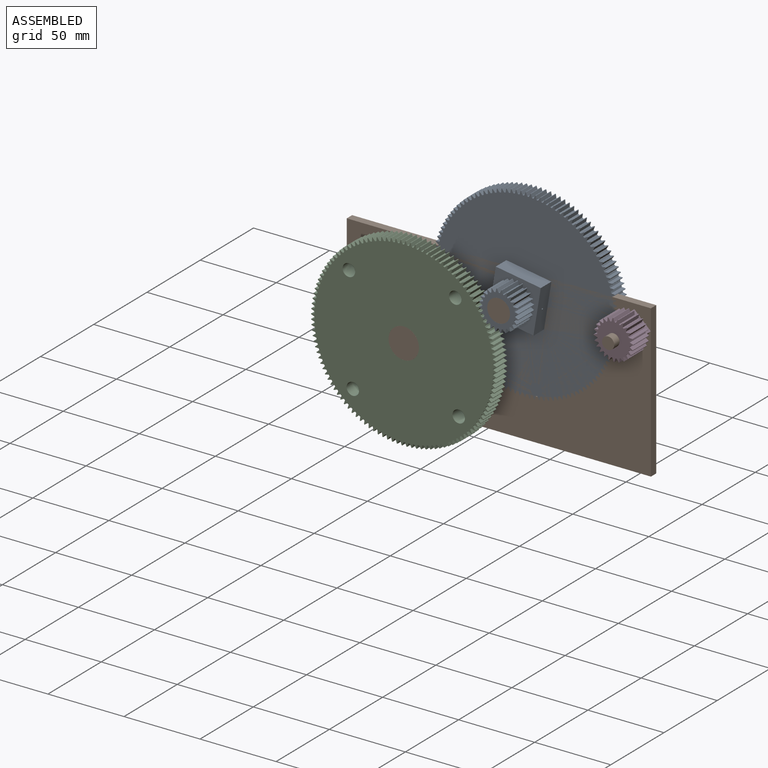
[diagram: assembled view]
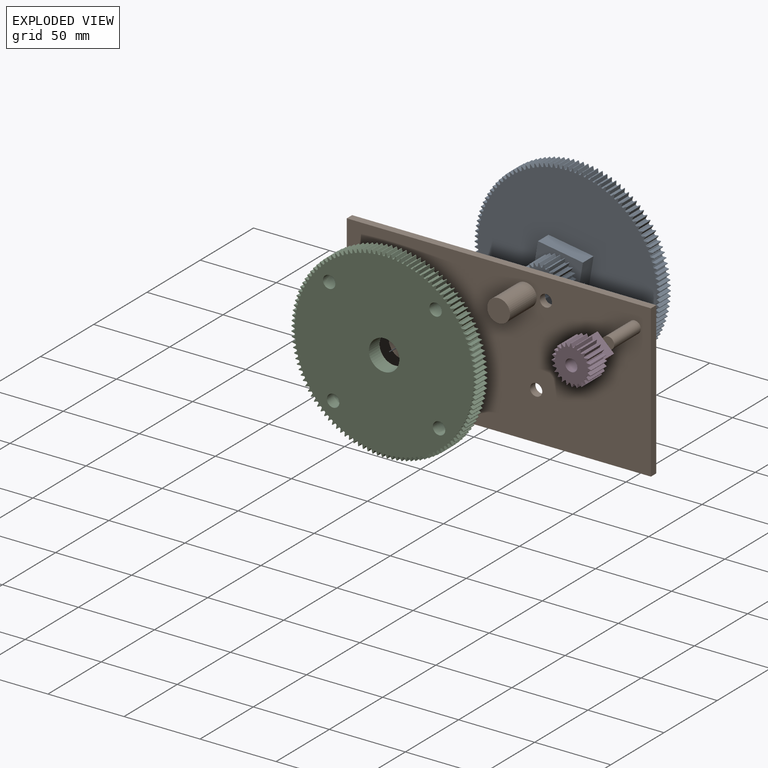
[diagram: exploded view]
GUIDED TOUR — MATED ASSEMBLY (Onshape document 46f5df53741bc79f24e5e52b, AutoMate assembly 46f5df53741bc79f24e5e52b_6ad09a4ab3057890df0f131d_3e118a92281bbf4fea981c0b_default)

This assembly has 4 components, labeled P0..P3 below (a component is one placed occurrence of a part; the same part can appear more than once), held together by 3 mates. A mate is a constraint between two components; its type names the relative motion it leaves free:
  REVOLUTE — leaves rotation about the listed axis free (a hinge).
Axis/direction vectors are unit vectors and 'through' points are millimeter coordinates, both in the assembly's world frame.

MATES
  1. REVOLUTE "Revolute 3": P1 <-> P3, axis (0.000, -1.000, 0.000) through (264.86, -38.01, 86.17) mm
  2. REVOLUTE "Revolute 1": P1 <-> P2, axis (0.000, -1.000, 0.000) through (130.51, -38.01, 50.17) mm
  3. REVOLUTE "Revolute 2": P1 <-> P0, axis (0.000, -1.000, 0.000) through (192.86, -38.01, 86.17) mm

ASSEMBLY ORDER
  1. P1 — the base component [order heuristic]
  2. P0 [order heuristic]
  3. P2 [order heuristic]
  4. P3 [order heuristic]
Order-tag legend:
  [order heuristic] — this assembly is geometrically interlocked (no collision-free removal order exists), so components are listed in mate-graph order; insertion feasibility is not verified.

Of the 4 components, 3 carry the full construction recipe — the FeatureScript program that regenerates the part's solid from scratch; the rest are supplied as boundary geometry only.
Each toured component is shown spotlighted twice — in the assembled view, then in the exploded view, where a leader line traces a displaced component back to its assembled socket (saturated green if recipe-attached, orange if geometry-only; every other component desaturated gray) — followed by its recipe or geometry summary and the mates that hold it.
NOTE — document 2 of 2 of this assembly tour. The two overview renders and the header above are repeated from document 1; the component sections below continue where the previous document stopped.
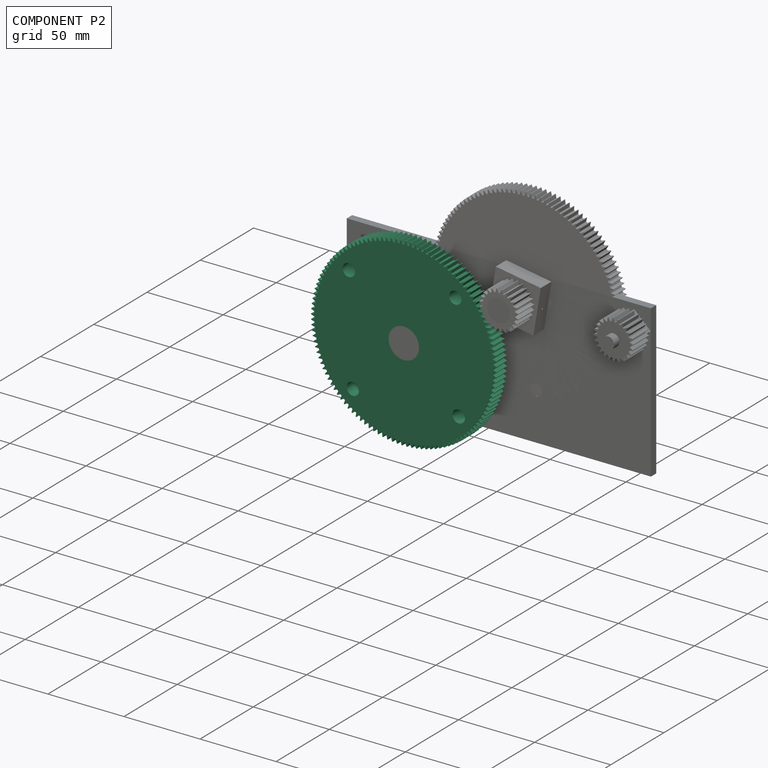
[diagram: component P2 — assembled]
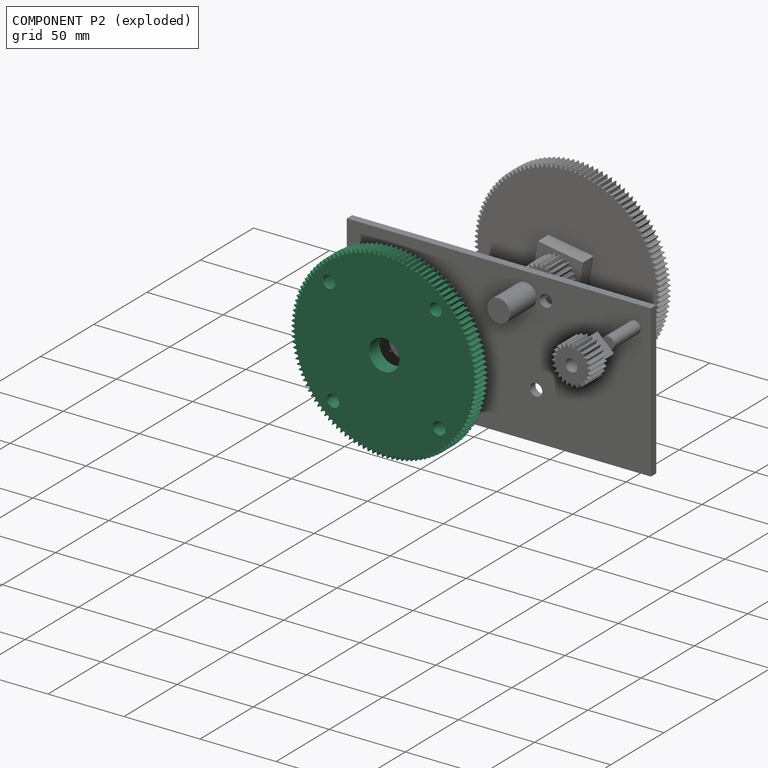
[diagram: component P2 — exploded]
COMPONENT P2 — recipe-attached (CADFS 00383873, mesh-verified: the recipe's output STEP matches this component's geometry to below the mesh-comparison resolution (tessellation chordal tolerance ~0.259 mm)).
Held by: REVOLUTE mate "Revolute 1" to P1.
Construction recipe (FeatureScript — the CAD program that rebuilds this solid; sketch coordinates are in the units given by the * unit suffixes, e.g. mm):

FeatureScript 1511;
import(path : "onshape/std/geometry.fs", version : "1511.0");
import(path : "onshape/std/common.fs", version : "1511.0");
const mm = millimeter;
const VERTEX = EntityType.VERTEX;
const EDGE = EntityType.EDGE;
const FACE = EntityType.FACE;
const BODY = EntityType.BODY;
function v(x, y){return vector(x, y);}
function OD(order){return orderDisambiguation(order);}
function OSD(set){return originalSetDisambiguation(set);}
function TD(topology){return topologyDisambiguation(topology);}
function TDD(query){return trueDependencyDisambiguation(query);}
function sQuery(a, b, c) {return sketchEntityQuery(a, b, c);}

annotation { "Feature Type Name" : "Feature", "Feature Type Description" : "" }
export const myFeature = defineFeature(function(context is Context, id is Id, definition is map)
    precondition{}
    {
        {
            var Q0;
            Q0=qCreatedBy(makeId("Front.planeOp"),FACE);
            var sketch = newSketch(context, id + "F0", { "sketchPlane" : qUnion([Q0])});
            skCircle(sketch, "E0", {"center": v(0, 0) * mm, "radius": 58.75 * mm});
            skCircle(sketch, "E1", {"center": v(0, 0) * mm, "radius": 61 * mm, "construction": true});
            skLineSegment(sketch, "E2", {"start": v(-1, 58.74) * mm, "end": v(-0.19, 61) * mm});
            skLineSegment(sketch, "E3", {"start": v(-0.19, 61) * mm, "end": v(0, 61) * mm});
            skLineSegment(sketch, "E4", {"start": v(-1, 58.74) * mm, "end": v(-1, 61.95) * mm, "construction": true});
            skLineSegment(sketch, "E5.MirrorCS", {"start": v(0.19, 61) * mm, "end": v(0, 61) * mm});
            skLineSegment(sketch, "E6.MirrorCS", {"start": v(1, 58.74) * mm, "end": v(0.19, 61) * mm});
            skLineSegment(sketch, "E7.1.0", {"start": v(-4.08, 58.6) * mm, "end": v(-3.38, 60.9) * mm});
            skLineSegment(sketch, "E7.1.1", {"start": v(-3.38, 60.9) * mm, "end": v(-3.2, 60.92) * mm});
            skLineSegment(sketch, "E7.1.2", {"start": v(-3, 60.93) * mm, "end": v(-3.2, 60.92) * mm});
            skLineSegment(sketch, "E7.1.3", {"start": v(-2.07, 58.71) * mm, "end": v(-3, 60.93) * mm});
            skLineSegment(sketch, "E7.2.0", {"start": v(-7.14, 58.31) * mm, "end": v(-6.56, 60.65) * mm});
            skLineSegment(sketch, "E7.2.1", {"start": v(-6.56, 60.65) * mm, "end": v(-6.38, 60.67) * mm});
            skLineSegment(sketch, "E7.2.2", {"start": v(-6.19, 60.69) * mm, "end": v(-6.38, 60.67) * mm});
            skLineSegment(sketch, "E7.2.3", {"start": v(-5.14, 58.53) * mm, "end": v(-6.19, 60.69) * mm});
            skLineSegment(sketch, "E7.3.0", {"start": v(-10.19, 57.86) * mm, "end": v(-9.73, 60.22) * mm});
            skLineSegment(sketch, "E7.3.1", {"start": v(-9.73, 60.22) * mm, "end": v(-9.54, 60.25) * mm});
            skLineSegment(sketch, "E7.3.2", {"start": v(-9.36, 60.28) * mm, "end": v(-9.54, 60.25) * mm});
            skLineSegment(sketch, "E7.3.3", {"start": v(-8.2, 58.18) * mm, "end": v(-9.36, 60.28) * mm});
            skLineSegment(sketch, "E7.4.0", {"start": v(-13.2, 57.25) * mm, "end": v(-12.87, 59.63) * mm});
            skLineSegment(sketch, "E7.4.1", {"start": v(-12.87, 59.63) * mm, "end": v(-12.68, 59.67) * mm});
            skLineSegment(sketch, "E7.4.2", {"start": v(-12.5, 59.7) * mm, "end": v(-12.68, 59.67) * mm});
            skLineSegment(sketch, "E7.4.3", {"start": v(-11.23, 57.67) * mm, "end": v(-12.5, 59.7) * mm});
            skLineSegment(sketch, "E7.5.0", {"start": v(-16.18, 56.48) * mm, "end": v(-15.97, 58.87) * mm});
            skLineSegment(sketch, "E7.5.1", {"start": v(-15.97, 58.87) * mm, "end": v(-15.79, 58.92) * mm});
            skLineSegment(sketch, "E7.5.2", {"start": v(-15.6, 58.97) * mm, "end": v(-15.79, 58.92) * mm});
            skLineSegment(sketch, "E7.5.3", {"start": v(-14.23, 57) * mm, "end": v(-15.6, 58.97) * mm});
            skLineSegment(sketch, "E7.6.0", {"start": v(-19.11, 55.55) * mm, "end": v(-19.03, 57.96) * mm});
            skLineSegment(sketch, "E7.6.1", {"start": v(-19.03, 57.96) * mm, "end": v(-18.85, 58.01) * mm});
            skLineSegment(sketch, "E7.6.2", {"start": v(-18.67, 58.07) * mm, "end": v(-18.85, 58.01) * mm});
            skLineSegment(sketch, "E7.6.3", {"start": v(-17.2, 56.18) * mm, "end": v(-18.67, 58.07) * mm});
            skLineSegment(sketch, "E7.7.0", {"start": v(-22, 54.48) * mm, "end": v(-22.04, 56.88) * mm});
            skLineSegment(sketch, "E7.7.1", {"start": v(-22.04, 56.88) * mm, "end": v(-21.86, 56.95) * mm});
            skLineSegment(sketch, "E7.7.2", {"start": v(-21.69, 57.02) * mm, "end": v(-21.86, 56.95) * mm});
            skLineSegment(sketch, "E7.7.3", {"start": v(-20.1, 55.2) * mm, "end": v(-21.69, 57.02) * mm});
            skLineSegment(sketch, "E7.8.0", {"start": v(-24.81, 53.25) * mm, "end": v(-24.98, 55.65) * mm});
            skLineSegment(sketch, "E7.8.1", {"start": v(-24.98, 55.65) * mm, "end": v(-24.81, 55.73) * mm});
            skLineSegment(sketch, "E7.8.2", {"start": v(-24.64, 55.8) * mm, "end": v(-24.81, 55.73) * mm});
            skLineSegment(sketch, "E7.8.3", {"start": v(-22.97, 54.07) * mm, "end": v(-24.64, 55.8) * mm});
            skLineSegment(sketch, "E7.9.0", {"start": v(-27.57, 51.88) * mm, "end": v(-27.86, 54.27) * mm});
            skLineSegment(sketch, "E7.9.1", {"start": v(-27.86, 54.27) * mm, "end": v(-27.7, 54.35) * mm});
            skLineSegment(sketch, "E7.9.2", {"start": v(-27.53, 54.44) * mm, "end": v(-27.7, 54.35) * mm});
            skLineSegment(sketch, "E7.9.3", {"start": v(-25.77, 52.8) * mm, "end": v(-27.53, 54.44) * mm});
            skLineSegment(sketch, "E7.10.0", {"start": v(-30.24, 50.37) * mm, "end": v(-30.66, 52.73) * mm});
            skLineSegment(sketch, "E7.10.1", {"start": v(-30.66, 52.73) * mm, "end": v(-30.5, 52.83) * mm});
            skLineSegment(sketch, "E7.10.2", {"start": v(-30.34, 52.92) * mm, "end": v(-30.5, 52.83) * mm});
            skLineSegment(sketch, "E7.10.3", {"start": v(-28.5, 51.38) * mm, "end": v(-30.34, 52.92) * mm});
            skLineSegment(sketch, "E7.11.0", {"start": v(-32.84, 48.71) * mm, "end": v(-33.38, 51.06) * mm});
            skLineSegment(sketch, "E7.11.1", {"start": v(-33.38, 51.06) * mm, "end": v(-33.22, 51.16) * mm});
            skLineSegment(sketch, "E7.11.2", {"start": v(-33.07, 51.26) * mm, "end": v(-33.22, 51.16) * mm});
            skLineSegment(sketch, "E7.11.3", {"start": v(-31.15, 49.81) * mm, "end": v(-33.07, 51.26) * mm});
            skLineSegment(sketch, "E8.1.12.0", {"start": v(-35.34, 46.93) * mm, "end": v(-36, 49.24) * mm});
            skLineSegment(sketch, "E8.3.12.0", {"start": v(-36, 49.24) * mm, "end": v(-35.85, 49.35) * mm});
            skLineSegment(sketch, "E8.6.12.0", {"start": v(-35.7, 49.46) * mm, "end": v(-35.85, 49.35) * mm});
            skLineSegment(sketch, "E8.9.12.0", {"start": v(-33.71, 48.12) * mm, "end": v(-35.7, 49.46) * mm});
            skLineSegment(sketch, "E8.1.13.0", {"start": v(-37.75, 45.02) * mm, "end": v(-38.53, 47.29) * mm});
            skLineSegment(sketch, "E8.3.13.0", {"start": v(-38.53, 47.29) * mm, "end": v(-38.39, 47.4) * mm});
            skLineSegment(sketch, "E8.6.13.0", {"start": v(-38.24, 47.52) * mm, "end": v(-38.39, 47.4) * mm});
            skLineSegment(sketch, "E8.9.13.0", {"start": v(-36.18, 46.29) * mm, "end": v(-38.24, 47.52) * mm});
            skLineSegment(sketch, "E8.1.14.0", {"start": v(-40.06, 42.98) * mm, "end": v(-40.96, 45.2) * mm});
            skLineSegment(sketch, "E8.3.14.0", {"start": v(-40.96, 45.2) * mm, "end": v(-40.82, 45.33) * mm});
            skLineSegment(sketch, "E8.6.14.0", {"start": v(-40.68, 45.46) * mm, "end": v(-40.82, 45.33) * mm});
            skLineSegment(sketch, "E8.9.14.0", {"start": v(-38.56, 44.33) * mm, "end": v(-40.68, 45.46) * mm});
            skLineSegment(sketch, "E8.1.15.0", {"start": v(-42.25, 40.82) * mm, "end": v(-43.27, 43) * mm});
            skLineSegment(sketch, "E8.3.15.0", {"start": v(-43.27, 43) * mm, "end": v(-43.13, 43.13) * mm});
            skLineSegment(sketch, "E8.6.15.0", {"start": v(-43, 43.27) * mm, "end": v(-43.13, 43.13) * mm});
            skLineSegment(sketch, "E8.9.15.0", {"start": v(-40.82, 42.25) * mm, "end": v(-43, 43.27) * mm});
            skLineSegment(sketch, "E8.1.16.0", {"start": v(-44.33, 38.56) * mm, "end": v(-45.46, 40.68) * mm});
            skLineSegment(sketch, "E8.3.16.0", {"start": v(-45.46, 40.68) * mm, "end": v(-45.33, 40.82) * mm});
            skLineSegment(sketch, "E8.6.16.0", {"start": v(-45.2, 40.96) * mm, "end": v(-45.33, 40.82) * mm});
            skLineSegment(sketch, "E8.9.16.0", {"start": v(-42.98, 40.06) * mm, "end": v(-45.2, 40.96) * mm});
            skLineSegment(sketch, "E8.1.17.0", {"start": v(-46.29, 36.18) * mm, "end": v(-47.52, 38.24) * mm});
            skLineSegment(sketch, "E8.3.17.0", {"start": v(-47.52, 38.24) * mm, "end": v(-47.4, 38.39) * mm});
            skLineSegment(sketch, "E8.6.17.0", {"start": v(-47.29, 38.53) * mm, "end": v(-47.4, 38.39) * mm});
            skLineSegment(sketch, "E8.9.17.0", {"start": v(-45.02, 37.75) * mm, "end": v(-47.29, 38.53) * mm});
            skLineSegment(sketch, "E8.1.18.0", {"start": v(-48.12, 33.71) * mm, "end": v(-49.46, 35.7) * mm});
            skLineSegment(sketch, "E8.3.18.0", {"start": v(-49.46, 35.7) * mm, "end": v(-49.35, 35.85) * mm});
            skLineSegment(sketch, "E8.6.18.0", {"start": v(-49.24, 36) * mm, "end": v(-49.35, 35.85) * mm});
            skLineSegment(sketch, "E8.9.18.0", {"start": v(-46.93, 35.34) * mm, "end": v(-49.24, 36) * mm});
            skLineSegment(sketch, "E8.1.19.0", {"start": v(-49.81, 31.15) * mm, "end": v(-51.26, 33.07) * mm});
            skLineSegment(sketch, "E8.3.19.0", {"start": v(-51.26, 33.07) * mm, "end": v(-51.16, 33.22) * mm});
            skLineSegment(sketch, "E8.6.19.0", {"start": v(-51.06, 33.38) * mm, "end": v(-51.16, 33.22) * mm});
            skLineSegment(sketch, "E8.9.19.0", {"start": v(-48.71, 32.84) * mm, "end": v(-51.06, 33.38) * mm});
            skLineSegment(sketch, "E8.1.20.0", {"start": v(-51.38, 28.5) * mm, "end": v(-52.92, 30.34) * mm});
            skLineSegment(sketch, "E8.3.20.0", {"start": v(-52.92, 30.34) * mm, "end": v(-52.83, 30.5) * mm});
            skLineSegment(sketch, "E8.6.20.0", {"start": v(-52.73, 30.66) * mm, "end": v(-52.83, 30.5) * mm});
            skLineSegment(sketch, "E8.9.20.0", {"start": v(-50.37, 30.24) * mm, "end": v(-52.73, 30.66) * mm});
            skLineSegment(sketch, "E8.1.21.0", {"start": v(-52.8, 25.77) * mm, "end": v(-54.44, 27.53) * mm});
            skLineSegment(sketch, "E8.3.21.0", {"start": v(-54.44, 27.53) * mm, "end": v(-54.35, 27.7) * mm});
            skLineSegment(sketch, "E8.6.21.0", {"start": v(-54.27, 27.86) * mm, "end": v(-54.35, 27.7) * mm});
            skLineSegment(sketch, "E8.9.21.0", {"start": v(-51.88, 27.57) * mm, "end": v(-54.27, 27.86) * mm});
            skLineSegment(sketch, "E8.1.22.0", {"start": v(-54.07, 22.97) * mm, "end": v(-55.8, 24.64) * mm});
            skLineSegment(sketch, "E8.3.22.0", {"start": v(-55.8, 24.64) * mm, "end": v(-55.73, 24.81) * mm});
            skLineSegment(sketch, "E8.6.22.0", {"start": v(-55.65, 24.98) * mm, "end": v(-55.73, 24.81) * mm});
            skLineSegment(sketch, "E8.9.22.0", {"start": v(-53.25, 24.81) * mm, "end": v(-55.65, 24.98) * mm});
            skLineSegment(sketch, "E8.1.23.0", {"start": v(-55.2, 20.1) * mm, "end": v(-57.02, 21.69) * mm});
            skLineSegment(sketch, "E8.3.23.0", {"start": v(-57.02, 21.69) * mm, "end": v(-56.95, 21.86) * mm});
            skLineSegment(sketch, "E8.6.23.0", {"start": v(-56.88, 22.04) * mm, "end": v(-56.95, 21.86) * mm});
            skLineSegment(sketch, "E8.9.23.0", {"start": v(-54.48, 22) * mm, "end": v(-56.88, 22.04) * mm});
            skLineSegment(sketch, "E8.1.24.0", {"start": v(-56.18, 17.2) * mm, "end": v(-58.07, 18.67) * mm});
            skLineSegment(sketch, "E8.3.24.0", {"start": v(-58.07, 18.67) * mm, "end": v(-58.01, 18.85) * mm});
            skLineSegment(sketch, "E8.6.24.0", {"start": v(-57.96, 19.03) * mm, "end": v(-58.01, 18.85) * mm});
            skLineSegment(sketch, "E8.9.24.0", {"start": v(-55.55, 19.11) * mm, "end": v(-57.96, 19.03) * mm});
            skLineSegment(sketch, "E8.1.25.0", {"start": v(-57, 14.23) * mm, "end": v(-58.97, 15.6) * mm});
            skLineSegment(sketch, "E8.3.25.0", {"start": v(-58.97, 15.6) * mm, "end": v(-58.92, 15.79) * mm});
            skLineSegment(sketch, "E8.6.25.0", {"start": v(-58.87, 15.97) * mm, "end": v(-58.92, 15.79) * mm});
            skLineSegment(sketch, "E8.9.25.0", {"start": v(-56.48, 16.18) * mm, "end": v(-58.87, 15.97) * mm});
            skLineSegment(sketch, "E8.1.26.0", {"start": v(-57.67, 11.23) * mm, "end": v(-59.7, 12.5) * mm});
            skLineSegment(sketch, "E8.3.26.0", {"start": v(-59.7, 12.5) * mm, "end": v(-59.67, 12.68) * mm});
            skLineSegment(sketch, "E8.6.26.0", {"start": v(-59.63, 12.87) * mm, "end": v(-59.67, 12.68) * mm});
            skLineSegment(sketch, "E8.9.26.0", {"start": v(-57.25, 13.2) * mm, "end": v(-59.63, 12.87) * mm});
            skLineSegment(sketch, "E8.1.27.0", {"start": v(-58.18, 8.2) * mm, "end": v(-60.28, 9.36) * mm});
            skLineSegment(sketch, "E8.3.27.0", {"start": v(-60.28, 9.36) * mm, "end": v(-60.25, 9.54) * mm});
            skLineSegment(sketch, "E8.6.27.0", {"start": v(-60.22, 9.73) * mm, "end": v(-60.25, 9.54) * mm});
            skLineSegment(sketch, "E8.9.27.0", {"start": v(-57.86, 10.19) * mm, "end": v(-60.22, 9.73) * mm});
            skLineSegment(sketch, "E8.1.28.0", {"start": v(-58.53, 5.14) * mm, "end": v(-60.69, 6.19) * mm});
            skLineSegment(sketch, "E8.3.28.0", {"start": v(-60.69, 6.19) * mm, "end": v(-60.67, 6.38) * mm});
            skLineSegment(sketch, "E8.6.28.0", {"start": v(-60.65, 6.56) * mm, "end": v(-60.67, 6.38) * mm});
            skLineSegment(sketch, "E8.9.28.0", {"start": v(-58.31, 7.14) * mm, "end": v(-60.65, 6.56) * mm});
            skLineSegment(sketch, "E8.1.29.0", {"start": v(-58.71, 2.07) * mm, "end": v(-60.93, 3) * mm});
            skLineSegment(sketch, "E8.3.29.0", {"start": v(-60.93, 3) * mm, "end": v(-60.92, 3.2) * mm});
            skLineSegment(sketch, "E8.6.29.0", {"start": v(-60.9, 3.38) * mm, "end": v(-60.92, 3.2) * mm});
            skLineSegment(sketch, "E8.9.29.0", {"start": v(-58.6, 4.08) * mm, "end": v(-60.9, 3.38) * mm});
            skLineSegment(sketch, "E8.1.30.0", {"start": v(-58.74, -1) * mm, "end": v(-61, -0.19) * mm});
            skLineSegment(sketch, "E8.3.30.0", {"start": v(-61, -0.19) * mm, "end": v(-61, 0) * mm});
            skLineSegment(sketch, "E8.6.30.0", {"start": v(-61, 0.19) * mm, "end": v(-61, 0) * mm});
            skLineSegment(sketch, "E8.9.30.0", {"start": v(-58.74, 1) * mm, "end": v(-61, 0.19) * mm});
            skLineSegment(sketch, "E8.1.31.0", {"start": v(-58.6, -4.08) * mm, "end": v(-60.9, -3.38) * mm});
            skLineSegment(sketch, "E8.3.31.0", {"start": v(-60.9, -3.38) * mm, "end": v(-60.92, -3.2) * mm});
            skLineSegment(sketch, "E8.6.31.0", {"start": v(-60.93, -3) * mm, "end": v(-60.92, -3.2) * mm});
            skLineSegment(sketch, "E8.9.31.0", {"start": v(-58.71, -2.07) * mm, "end": v(-60.93, -3) * mm});
            skLineSegment(sketch, "E8.1.32.0", {"start": v(-58.31, -7.14) * mm, "end": v(-60.65, -6.56) * mm});
            skLineSegment(sketch, "E8.3.32.0", {"start": v(-60.65, -6.56) * mm, "end": v(-60.67, -6.38) * mm});
            skLineSegment(sketch, "E8.6.32.0", {"start": v(-60.69, -6.19) * mm, "end": v(-60.67, -6.38) * mm});
            skLineSegment(sketch, "E8.9.32.0", {"start": v(-58.53, -5.14) * mm, "end": v(-60.69, -6.19) * mm});
            skLineSegment(sketch, "E8.1.33.0", {"start": v(-57.86, -10.19) * mm, "end": v(-60.22, -9.73) * mm});
            skLineSegment(sketch, "E8.3.33.0", {"start": v(-60.22, -9.73) * mm, "end": v(-60.25, -9.54) * mm});
            skLineSegment(sketch, "E8.6.33.0", {"start": v(-60.28, -9.36) * mm, "end": v(-60.25, -9.54) * mm});
            skLineSegment(sketch, "E8.9.33.0", {"start": v(-58.18, -8.2) * mm, "end": v(-60.28, -9.36) * mm});
            skLineSegment(sketch, "E8.1.34.0", {"start": v(-57.25, -13.2) * mm, "end": v(-59.63, -12.87) * mm});
            skLineSegment(sketch, "E8.3.34.0", {"start": v(-59.63, -12.87) * mm, "end": v(-59.67, -12.68) * mm});
            skLineSegment(sketch, "E8.6.34.0", {"start": v(-59.7, -12.5) * mm, "end": v(-59.67, -12.68) * mm});
            skLineSegment(sketch, "E8.9.34.0", {"start": v(-57.67, -11.23) * mm, "end": v(-59.7, -12.5) * mm});
            skLineSegment(sketch, "E8.1.35.0", {"start": v(-56.48, -16.18) * mm, "end": v(-58.87, -15.97) * mm});
            skLineSegment(sketch, "E8.3.35.0", {"start": v(-58.87, -15.97) * mm, "end": v(-58.92, -15.79) * mm});
            skLineSegment(sketch, "E8.6.35.0", {"start": v(-58.97, -15.6) * mm, "end": v(-58.92, -15.79) * mm});
            skLineSegment(sketch, "E8.9.35.0", {"start": v(-57, -14.23) * mm, "end": v(-58.97, -15.6) * mm});
            skLineSegment(sketch, "E8.1.36.0", {"start": v(-55.55, -19.11) * mm, "end": v(-57.96, -19.03) * mm});
            skLineSegment(sketch, "E8.3.36.0", {"start": v(-57.96, -19.03) * mm, "end": v(-58.01, -18.85) * mm});
            skLineSegment(sketch, "E8.6.36.0", {"start": v(-58.07, -18.67) * mm, "end": v(-58.01, -18.85) * mm});
            skLineSegment(sketch, "E8.9.36.0", {"start": v(-56.18, -17.2) * mm, "end": v(-58.07, -18.67) * mm});
            skLineSegment(sketch, "E8.1.37.0", {"start": v(-54.48, -22) * mm, "end": v(-56.88, -22.04) * mm});
            skLineSegment(sketch, "E8.3.37.0", {"start": v(-56.88, -22.04) * mm, "end": v(-56.95, -21.86) * mm});
            skLineSegment(sketch, "E8.6.37.0", {"start": v(-57.02, -21.69) * mm, "end": v(-56.95, -21.86) * mm});
            skLineSegment(sketch, "E8.9.37.0", {"start": v(-55.2, -20.1) * mm, "end": v(-57.02, -21.69) * mm});
            skLineSegment(sketch, "E8.1.38.0", {"start": v(-53.25, -24.81) * mm, "end": v(-55.65, -24.98) * mm});
            skLineSegment(sketch, "E8.3.38.0", {"start": v(-55.65, -24.98) * mm, "end": v(-55.73, -24.81) * mm});
            skLineSegment(sketch, "E8.6.38.0", {"start": v(-55.8, -24.64) * mm, "end": v(-55.73, -24.81) * mm});
            skLineSegment(sketch, "E8.9.38.0", {"start": v(-54.07, -22.97) * mm, "end": v(-55.8, -24.64) * mm});
            skLineSegment(sketch, "E8.1.39.0", {"start": v(-51.88, -27.57) * mm, "end": v(-54.27, -27.86) * mm});
            skLineSegment(sketch, "E8.3.39.0", {"start": v(-54.27, -27.86) * mm, "end": v(-54.35, -27.7) * mm});
            skLineSegment(sketch, "E8.6.39.0", {"start": v(-54.44, -27.53) * mm, "end": v(-54.35, -27.7) * mm});
            skLineSegment(sketch, "E8.9.39.0", {"start": v(-52.8, -25.77) * mm, "end": v(-54.44, -27.53) * mm});
            skLineSegment(sketch, "E8.1.40.0", {"start": v(-50.37, -30.24) * mm, "end": v(-52.73, -30.66) * mm});
            skLineSegment(sketch, "E8.3.40.0", {"start": v(-52.73, -30.66) * mm, "end": v(-52.83, -30.5) * mm});
            skLineSegment(sketch, "E8.6.40.0", {"start": v(-52.92, -30.34) * mm, "end": v(-52.83, -30.5) * mm});
            skLineSegment(sketch, "E8.9.40.0", {"start": v(-51.38, -28.5) * mm, "end": v(-52.92, -30.34) * mm});
            skLineSegment(sketch, "E8.1.41.0", {"start": v(-48.71, -32.84) * mm, "end": v(-51.06, -33.38) * mm});
            skLineSegment(sketch, "E8.3.41.0", {"start": v(-51.06, -33.38) * mm, "end": v(-51.16, -33.22) * mm});
            skLineSegment(sketch, "E8.6.41.0", {"start": v(-51.26, -33.07) * mm, "end": v(-51.16, -33.22) * mm});
            skLineSegment(sketch, "E8.9.41.0", {"start": v(-49.81, -31.15) * mm, "end": v(-51.26, -33.07) * mm});
            skLineSegment(sketch, "E8.1.42.0", {"start": v(-46.93, -35.34) * mm, "end": v(-49.24, -36) * mm});
            skLineSegment(sketch, "E8.3.42.0", {"start": v(-49.24, -36) * mm, "end": v(-49.35, -35.85) * mm});
            skLineSegment(sketch, "E8.6.42.0", {"start": v(-49.46, -35.7) * mm, "end": v(-49.35, -35.85) * mm});
            skLineSegment(sketch, "E8.9.42.0", {"start": v(-48.12, -33.71) * mm, "end": v(-49.46, -35.7) * mm});
            skLineSegment(sketch, "E8.1.43.0", {"start": v(-45.02, -37.75) * mm, "end": v(-47.29, -38.53) * mm});
            skLineSegment(sketch, "E8.3.43.0", {"start": v(-47.29, -38.53) * mm, "end": v(-47.4, -38.39) * mm});
            skLineSegment(sketch, "E8.6.43.0", {"start": v(-47.52, -38.24) * mm, "end": v(-47.4, -38.39) * mm});
            skLineSegment(sketch, "E8.9.43.0", {"start": v(-46.29, -36.18) * mm, "end": v(-47.52, -38.24) * mm});
            skLineSegment(sketch, "E8.1.44.0", {"start": v(-42.98, -40.06) * mm, "end": v(-45.2, -40.96) * mm});
            skLineSegment(sketch, "E8.3.44.0", {"start": v(-45.2, -40.96) * mm, "end": v(-45.33, -40.82) * mm});
            skLineSegment(sketch, "E8.6.44.0", {"start": v(-45.46, -40.68) * mm, "end": v(-45.33, -40.82) * mm});
            skLineSegment(sketch, "E8.9.44.0", {"start": v(-44.33, -38.56) * mm, "end": v(-45.46, -40.68) * mm});
            skLineSegment(sketch, "E8.1.45.0", {"start": v(-40.82, -42.25) * mm, "end": v(-43, -43.27) * mm});
            skLineSegment(sketch, "E8.3.45.0", {"start": v(-43, -43.27) * mm, "end": v(-43.13, -43.13) * mm});
            skLineSegment(sketch, "E8.6.45.0", {"start": v(-43.27, -43) * mm, "end": v(-43.13, -43.13) * mm});
            skLineSegment(sketch, "E8.9.45.0", {"start": v(-42.25, -40.82) * mm, "end": v(-43.27, -43) * mm});
            skLineSegment(sketch, "E8.1.46.0", {"start": v(-38.56, -44.33) * mm, "end": v(-40.68, -45.46) * mm});
            skLineSegment(sketch, "E8.3.46.0", {"start": v(-40.68, -45.46) * mm, "end": v(-40.82, -45.33) * mm});
            skLineSegment(sketch, "E8.6.46.0", {"start": v(-40.96, -45.2) * mm, "end": v(-40.82, -45.33) * mm});
            skLineSegment(sketch, "E8.9.46.0", {"start": v(-40.06, -42.98) * mm, "end": v(-40.96, -45.2) * mm});
            skLineSegment(sketch, "E8.1.47.0", {"start": v(-36.18, -46.29) * mm, "end": v(-38.24, -47.52) * mm});
            skLineSegment(sketch, "E8.3.47.0", {"start": v(-38.24, -47.52) * mm, "end": v(-38.39, -47.4) * mm});
            skLineSegment(sketch, "E8.6.47.0", {"start": v(-38.53, -47.29) * mm, "end": v(-38.39, -47.4) * mm});
            skLineSegment(sketch, "E8.9.47.0", {"start": v(-37.75, -45.02) * mm, "end": v(-38.53, -47.29) * mm});
            skLineSegment(sketch, "E8.1.48.0", {"start": v(-33.71, -48.12) * mm, "end": v(-35.7, -49.46) * mm});
            skLineSegment(sketch, "E8.3.48.0", {"start": v(-35.7, -49.46) * mm, "end": v(-35.85, -49.35) * mm});
            skLineSegment(sketch, "E8.6.48.0", {"start": v(-36, -49.24) * mm, "end": v(-35.85, -49.35) * mm});
            skLineSegment(sketch, "E8.9.48.0", {"start": v(-35.34, -46.93) * mm, "end": v(-36, -49.24) * mm});
            skLineSegment(sketch, "E8.1.49.0", {"start": v(-31.15, -49.81) * mm, "end": v(-33.07, -51.26) * mm});
            skLineSegment(sketch, "E8.3.49.0", {"start": v(-33.07, -51.26) * mm, "end": v(-33.22, -51.16) * mm});
            skLineSegment(sketch, "E8.6.49.0", {"start": v(-33.38, -51.06) * mm, "end": v(-33.22, -51.16) * mm});
            skLineSegment(sketch, "E8.9.49.0", {"start": v(-32.84, -48.71) * mm, "end": v(-33.38, -51.06) * mm});
            skLineSegment(sketch, "E8.1.50.0", {"start": v(-28.5, -51.38) * mm, "end": v(-30.34, -52.92) * mm});
            skLineSegment(sketch, "E8.3.50.0", {"start": v(-30.34, -52.92) * mm, "end": v(-30.5, -52.83) * mm});
            skLineSegment(sketch, "E8.6.50.0", {"start": v(-30.66, -52.73) * mm, "end": v(-30.5, -52.83) * mm});
            skLineSegment(sketch, "E8.9.50.0", {"start": v(-30.24, -50.37) * mm, "end": v(-30.66, -52.73) * mm});
            skLineSegment(sketch, "E8.1.51.0", {"start": v(-25.77, -52.8) * mm, "end": v(-27.53, -54.44) * mm});
            skLineSegment(sketch, "E8.3.51.0", {"start": v(-27.53, -54.44) * mm, "end": v(-27.7, -54.35) * mm});
            skLineSegment(sketch, "E8.6.51.0", {"start": v(-27.86, -54.27) * mm, "end": v(-27.7, -54.35) * mm});
            skLineSegment(sketch, "E8.9.51.0", {"start": v(-27.57, -51.88) * mm, "end": v(-27.86, -54.27) * mm});
            skLineSegment(sketch, "E8.1.52.0", {"start": v(-22.97, -54.07) * mm, "end": v(-24.64, -55.8) * mm});
            skLineSegment(sketch, "E8.3.52.0", {"start": v(-24.64, -55.8) * mm, "end": v(-24.81, -55.73) * mm});
            skLineSegment(sketch, "E8.6.52.0", {"start": v(-24.98, -55.65) * mm, "end": v(-24.81, -55.73) * mm});
            skLineSegment(sketch, "E8.9.52.0", {"start": v(-24.81, -53.25) * mm, "end": v(-24.98, -55.65) * mm});
            skLineSegment(sketch, "E8.1.53.0", {"start": v(-20.1, -55.2) * mm, "end": v(-21.69, -57.02) * mm});
            skLineSegment(sketch, "E8.3.53.0", {"start": v(-21.69, -57.02) * mm, "end": v(-21.86, -56.95) * mm});
            skLineSegment(sketch, "E8.6.53.0", {"start": v(-22.04, -56.88) * mm, "end": v(-21.86, -56.95) * mm});
            skLineSegment(sketch, "E8.9.53.0", {"start": v(-22, -54.48) * mm, "end": v(-22.04, -56.88) * mm});
            skLineSegment(sketch, "E8.1.54.0", {"start": v(-17.2, -56.18) * mm, "end": v(-18.67, -58.07) * mm});
            skLineSegment(sketch, "E8.3.54.0", {"start": v(-18.67, -58.07) * mm, "end": v(-18.85, -58.01) * mm});
            skLineSegment(sketch, "E8.6.54.0", {"start": v(-19.03, -57.96) * mm, "end": v(-18.85, -58.01) * mm});
            skLineSegment(sketch, "E8.9.54.0", {"start": v(-19.11, -55.55) * mm, "end": v(-19.03, -57.96) * mm});
            skLineSegment(sketch, "E8.1.55.0", {"start": v(-14.23, -57) * mm, "end": v(-15.6, -58.97) * mm});
            skLineSegment(sketch, "E8.3.55.0", {"start": v(-15.6, -58.97) * mm, "end": v(-15.79, -58.92) * mm});
            skLineSegment(sketch, "E8.6.55.0", {"start": v(-15.97, -58.87) * mm, "end": v(-15.79, -58.92) * mm});
            skLineSegment(sketch, "E8.9.55.0", {"start": v(-16.18, -56.48) * mm, "end": v(-15.97, -58.87) * mm});
            skLineSegment(sketch, "E8.1.56.0", {"start": v(-11.23, -57.67) * mm, "end": v(-12.5, -59.7) * mm});
            skLineSegment(sketch, "E8.3.56.0", {"start": v(-12.5, -59.7) * mm, "end": v(-12.68, -59.67) * mm});
            skLineSegment(sketch, "E8.6.56.0", {"start": v(-12.87, -59.63) * mm, "end": v(-12.68, -59.67) * mm});
            skLineSegment(sketch, "E8.9.56.0", {"start": v(-13.2, -57.25) * mm, "end": v(-12.87, -59.63) * mm});
            skLineSegment(sketch, "E8.1.57.0", {"start": v(-8.2, -58.18) * mm, "end": v(-9.36, -60.28) * mm});
            skLineSegment(sketch, "E8.3.57.0", {"start": v(-9.36, -60.28) * mm, "end": v(-9.54, -60.25) * mm});
            skLineSegment(sketch, "E8.6.57.0", {"start": v(-9.73, -60.22) * mm, "end": v(-9.54, -60.25) * mm});
            skLineSegment(sketch, "E8.9.57.0", {"start": v(-10.19, -57.86) * mm, "end": v(-9.73, -60.22) * mm});
            skLineSegment(sketch, "E8.1.58.0", {"start": v(-5.14, -58.53) * mm, "end": v(-6.19, -60.69) * mm});
            skLineSegment(sketch, "E8.3.58.0", {"start": v(-6.19, -60.69) * mm, "end": v(-6.38, -60.67) * mm});
            skLineSegment(sketch, "E8.6.58.0", {"start": v(-6.56, -60.65) * mm, "end": v(-6.38, -60.67) * mm});
            skLineSegment(sketch, "E8.9.58.0", {"start": v(-7.14, -58.31) * mm, "end": v(-6.56, -60.65) * mm});
            skLineSegment(sketch, "E8.1.59.0", {"start": v(-2.07, -58.71) * mm, "end": v(-3, -60.93) * mm});
            skLineSegment(sketch, "E8.3.59.0", {"start": v(-3, -60.93) * mm, "end": v(-3.2, -60.92) * mm});
            skLineSegment(sketch, "E8.6.59.0", {"start": v(-3.38, -60.9) * mm, "end": v(-3.2, -60.92) * mm});
            skLineSegment(sketch, "E8.9.59.0", {"start": v(-4.08, -58.6) * mm, "end": v(-3.38, -60.9) * mm});
            skLineSegment(sketch, "E8.1.60.0", {"start": v(1, -58.74) * mm, "end": v(0.19, -61) * mm});
            skLineSegment(sketch, "E8.3.60.0", {"start": v(0.19, -61) * mm, "end": v(0, -61) * mm});
            skLineSegment(sketch, "E8.6.60.0", {"start": v(-0.19, -61) * mm, "end": v(0, -61) * mm});
            skLineSegment(sketch, "E8.9.60.0", {"start": v(-1, -58.74) * mm, "end": v(-0.19, -61) * mm});
            skLineSegment(sketch, "E8.1.61.0", {"start": v(4.08, -58.6) * mm, "end": v(3.38, -60.9) * mm});
            skLineSegment(sketch, "E8.3.61.0", {"start": v(3.38, -60.9) * mm, "end": v(3.2, -60.92) * mm});
            skLineSegment(sketch, "E8.6.61.0", {"start": v(3, -60.93) * mm, "end": v(3.2, -60.92) * mm});
            skLineSegment(sketch, "E8.9.61.0", {"start": v(2.07, -58.71) * mm, "end": v(3, -60.93) * mm});
            skLineSegment(sketch, "E8.1.62.0", {"start": v(7.14, -58.31) * mm, "end": v(6.56, -60.65) * mm});
            skLineSegment(sketch, "E8.3.62.0", {"start": v(6.56, -60.65) * mm, "end": v(6.38, -60.67) * mm});
            skLineSegment(sketch, "E8.6.62.0", {"start": v(6.19, -60.69) * mm, "end": v(6.38, -60.67) * mm});
            skLineSegment(sketch, "E8.9.62.0", {"start": v(5.14, -58.53) * mm, "end": v(6.19, -60.69) * mm});
            skLineSegment(sketch, "E8.1.63.0", {"start": v(10.19, -57.86) * mm, "end": v(9.73, -60.22) * mm});
            skLineSegment(sketch, "E8.3.63.0", {"start": v(9.73, -60.22) * mm, "end": v(9.54, -60.25) * mm});
            skLineSegment(sketch, "E8.6.63.0", {"start": v(9.36, -60.28) * mm, "end": v(9.54, -60.25) * mm});
            skLineSegment(sketch, "E8.9.63.0", {"start": v(8.2, -58.18) * mm, "end": v(9.36, -60.28) * mm});
            skLineSegment(sketch, "E8.1.64.0", {"start": v(13.2, -57.25) * mm, "end": v(12.87, -59.63) * mm});
            skLineSegment(sketch, "E8.3.64.0", {"start": v(12.87, -59.63) * mm, "end": v(12.68, -59.67) * mm});
            skLineSegment(sketch, "E8.6.64.0", {"start": v(12.5, -59.7) * mm, "end": v(12.68, -59.67) * mm});
            skLineSegment(sketch, "E8.9.64.0", {"start": v(11.23, -57.67) * mm, "end": v(12.5, -59.7) * mm});
            skLineSegment(sketch, "E8.1.65.0", {"start": v(16.18, -56.48) * mm, "end": v(15.97, -58.87) * mm});
            skLineSegment(sketch, "E8.3.65.0", {"start": v(15.97, -58.87) * mm, "end": v(15.79, -58.92) * mm});
            skLineSegment(sketch, "E8.6.65.0", {"start": v(15.6, -58.97) * mm, "end": v(15.79, -58.92) * mm});
            skLineSegment(sketch, "E8.9.65.0", {"start": v(14.23, -57) * mm, "end": v(15.6, -58.97) * mm});
            skLineSegment(sketch, "E8.1.66.0", {"start": v(19.11, -55.55) * mm, "end": v(19.03, -57.96) * mm});
            skLineSegment(sketch, "E8.3.66.0", {"start": v(19.03, -57.96) * mm, "end": v(18.85, -58.01) * mm});
            skLineSegment(sketch, "E8.6.66.0", {"start": v(18.67, -58.07) * mm, "end": v(18.85, -58.01) * mm});
            skLineSegment(sketch, "E8.9.66.0", {"start": v(17.2, -56.18) * mm, "end": v(18.67, -58.07) * mm});
            skLineSegment(sketch, "E8.1.67.0", {"start": v(22, -54.48) * mm, "end": v(22.04, -56.88) * mm});
            skLineSegment(sketch, "E8.3.67.0", {"start": v(22.04, -56.88) * mm, "end": v(21.86, -56.95) * mm});
            skLineSegment(sketch, "E8.6.67.0", {"start": v(21.69, -57.02) * mm, "end": v(21.86, -56.95) * mm});
            skLineSegment(sketch, "E8.9.67.0", {"start": v(20.1, -55.2) * mm, "end": v(21.69, -57.02) * mm});
            skLineSegment(sketch, "E8.1.68.0", {"start": v(24.81, -53.25) * mm, "end": v(24.98, -55.65) * mm});
            skLineSegment(sketch, "E8.3.68.0", {"start": v(24.98, -55.65) * mm, "end": v(24.81, -55.73) * mm});
            skLineSegment(sketch, "E8.6.68.0", {"start": v(24.64, -55.8) * mm, "end": v(24.81, -55.73) * mm});
            skLineSegment(sketch, "E8.9.68.0", {"start": v(22.97, -54.07) * mm, "end": v(24.64, -55.8) * mm});
            skLineSegment(sketch, "E8.1.69.0", {"start": v(27.57, -51.88) * mm, "end": v(27.86, -54.27) * mm});
            skLineSegment(sketch, "E8.3.69.0", {"start": v(27.86, -54.27) * mm, "end": v(27.7, -54.35) * mm});
            skLineSegment(sketch, "E8.6.69.0", {"start": v(27.53, -54.44) * mm, "end": v(27.7, -54.35) * mm});
            skLineSegment(sketch, "E8.9.69.0", {"start": v(25.77, -52.8) * mm, "end": v(27.53, -54.44) * mm});
            skLineSegment(sketch, "E8.1.70.0", {"start": v(30.24, -50.37) * mm, "end": v(30.66, -52.73) * mm});
            skLineSegment(sketch, "E8.3.70.0", {"start": v(30.66, -52.73) * mm, "end": v(30.5, -52.83) * mm});
            skLineSegment(sketch, "E8.6.70.0", {"start": v(30.34, -52.92) * mm, "end": v(30.5, -52.83) * mm});
            skLineSegment(sketch, "E8.9.70.0", {"start": v(28.5, -51.38) * mm, "end": v(30.34, -52.92) * mm});
            skLineSegment(sketch, "E8.1.71.0", {"start": v(32.84, -48.71) * mm, "end": v(33.38, -51.06) * mm});
            skLineSegment(sketch, "E8.3.71.0", {"start": v(33.38, -51.06) * mm, "end": v(33.22, -51.16) * mm});
            skLineSegment(sketch, "E8.6.71.0", {"start": v(33.07, -51.26) * mm, "end": v(33.22, -51.16) * mm});
            skLineSegment(sketch, "E8.9.71.0", {"start": v(31.15, -49.81) * mm, "end": v(33.07, -51.26) * mm});
            skLineSegment(sketch, "E8.1.72.0", {"start": v(35.34, -46.93) * mm, "end": v(36, -49.24) * mm});
            skLineSegment(sketch, "E8.3.72.0", {"start": v(36, -49.24) * mm, "end": v(35.85, -49.35) * mm});
            skLineSegment(sketch, "E8.6.72.0", {"start": v(35.7, -49.46) * mm, "end": v(35.85, -49.35) * mm});
            skLineSegment(sketch, "E8.9.72.0", {"start": v(33.71, -48.12) * mm, "end": v(35.7, -49.46) * mm});
            skLineSegment(sketch, "E8.1.73.0", {"start": v(37.75, -45.02) * mm, "end": v(38.53, -47.29) * mm});
            skLineSegment(sketch, "E8.3.73.0", {"start": v(38.53, -47.29) * mm, "end": v(38.39, -47.4) * mm});
            skLineSegment(sketch, "E8.6.73.0", {"start": v(38.24, -47.52) * mm, "end": v(38.39, -47.4) * mm});
            skLineSegment(sketch, "E8.9.73.0", {"start": v(36.18, -46.29) * mm, "end": v(38.24, -47.52) * mm});
            skLineSegment(sketch, "E8.1.74.0", {"start": v(40.06, -42.98) * mm, "end": v(40.96, -45.2) * mm});
            skLineSegment(sketch, "E8.3.74.0", {"start": v(40.96, -45.2) * mm, "end": v(40.82, -45.33) * mm});
            skLineSegment(sketch, "E8.6.74.0", {"start": v(40.68, -45.46) * mm, "end": v(40.82, -45.33) * mm});
            skLineSegment(sketch, "E8.9.74.0", {"start": v(38.56, -44.33) * mm, "end": v(40.68, -45.46) * mm});
            skLineSegment(sketch, "E8.1.75.0", {"start": v(42.25, -40.82) * mm, "end": v(43.27, -43) * mm});
            skLineSegment(sketch, "E8.3.75.0", {"start": v(43.27, -43) * mm, "end": v(43.13, -43.13) * mm});
            skLineSegment(sketch, "E8.6.75.0", {"start": v(43, -43.27) * mm, "end": v(43.13, -43.13) * mm});
            skLineSegment(sketch, "E8.9.75.0", {"start": v(40.82, -42.25) * mm, "end": v(43, -43.27) * mm});
            skLineSegment(sketch, "E8.1.76.0", {"start": v(44.33, -38.56) * mm, "end": v(45.46, -40.68) * mm});
            skLineSegment(sketch, "E8.3.76.0", {"start": v(45.46, -40.68) * mm, "end": v(45.33, -40.82) * mm});
            skLineSegment(sketch, "E8.6.76.0", {"start": v(45.2, -40.96) * mm, "end": v(45.33, -40.82) * mm});
            skLineSegment(sketch, "E8.9.76.0", {"start": v(42.98, -40.06) * mm, "end": v(45.2, -40.96) * mm});
            skLineSegment(sketch, "E8.1.77.0", {"start": v(46.29, -36.18) * mm, "end": v(47.52, -38.24) * mm});
            skLineSegment(sketch, "E8.3.77.0", {"start": v(47.52, -38.24) * mm, "end": v(47.4, -38.39) * mm});
            skLineSegment(sketch, "E8.6.77.0", {"start": v(47.29, -38.53) * mm, "end": v(47.4, -38.39) * mm});
            skLineSegment(sketch, "E8.9.77.0", {"start": v(45.02, -37.75) * mm, "end": v(47.29, -38.53) * mm});
            skLineSegment(sketch, "E8.1.78.0", {"start": v(48.12, -33.71) * mm, "end": v(49.46, -35.7) * mm});
            skLineSegment(sketch, "E8.3.78.0", {"start": v(49.46, -35.7) * mm, "end": v(49.35, -35.85) * mm});
            skLineSegment(sketch, "E8.6.78.0", {"start": v(49.24, -36) * mm, "end": v(49.35, -35.85) * mm});
            skLineSegment(sketch, "E8.9.78.0", {"start": v(46.93, -35.34) * mm, "end": v(49.24, -36) * mm});
            skLineSegment(sketch, "E8.1.79.0", {"start": v(49.81, -31.15) * mm, "end": v(51.26, -33.07) * mm});
            skLineSegment(sketch, "E8.3.79.0", {"start": v(51.26, -33.07) * mm, "end": v(51.16, -33.22) * mm});
            skLineSegment(sketch, "E8.6.79.0", {"start": v(51.06, -33.38) * mm, "end": v(51.16, -33.22) * mm});
            skLineSegment(sketch, "E8.9.79.0", {"start": v(48.71, -32.84) * mm, "end": v(51.06, -33.38) * mm});
            skLineSegment(sketch, "E8.1.80.0", {"start": v(51.38, -28.5) * mm, "end": v(52.92, -30.34) * mm});
            skLineSegment(sketch, "E8.3.80.0", {"start": v(52.92, -30.34) * mm, "end": v(52.83, -30.5) * mm});
            skLineSegment(sketch, "E8.6.80.0", {"start": v(52.73, -30.66) * mm, "end": v(52.83, -30.5) * mm});
            skLineSegment(sketch, "E8.9.80.0", {"start": v(50.37, -30.24) * mm, "end": v(52.73, -30.66) * mm});
            skLineSegment(sketch, "E8.1.81.0", {"start": v(52.8, -25.77) * mm, "end": v(54.44, -27.53) * mm});
            skLineSegment(sketch, "E8.3.81.0", {"start": v(54.44, -27.53) * mm, "end": v(54.35, -27.7) * mm});
            skLineSegment(sketch, "E8.6.81.0", {"start": v(54.27, -27.86) * mm, "end": v(54.35, -27.7) * mm});
            skLineSegment(sketch, "E8.9.81.0", {"start": v(51.88, -27.57) * mm, "end": v(54.27, -27.86) * mm});
            skLineSegment(sketch, "E8.1.82.0", {"start": v(54.07, -22.97) * mm, "end": v(55.8, -24.64) * mm});
            skLineSegment(sketch, "E8.3.82.0", {"start": v(55.8, -24.64) * mm, "end": v(55.73, -24.81) * mm});
            skLineSegment(sketch, "E8.6.82.0", {"start": v(55.65, -24.98) * mm, "end": v(55.73, -24.81) * mm});
            skLineSegment(sketch, "E8.9.82.0", {"start": v(53.25, -24.81) * mm, "end": v(55.65, -24.98) * mm});
            skLineSegment(sketch, "E8.1.83.0", {"start": v(55.2, -20.1) * mm, "end": v(57.02, -21.69) * mm});
            skLineSegment(sketch, "E8.3.83.0", {"start": v(57.02, -21.69) * mm, "end": v(56.95, -21.86) * mm});
            skLineSegment(sketch, "E8.6.83.0", {"start": v(56.88, -22.04) * mm, "end": v(56.95, -21.86) * mm});
            skLineSegment(sketch, "E8.9.83.0", {"start": v(54.48, -22) * mm, "end": v(56.88, -22.04) * mm});
            skLineSegment(sketch, "E8.1.84.0", {"start": v(56.18, -17.2) * mm, "end": v(58.07, -18.67) * mm});
            skLineSegment(sketch, "E8.3.84.0", {"start": v(58.07, -18.67) * mm, "end": v(58.01, -18.85) * mm});
            skLineSegment(sketch, "E8.6.84.0", {"start": v(57.96, -19.03) * mm, "end": v(58.01, -18.85) * mm});
            skLineSegment(sketch, "E8.9.84.0", {"start": v(55.55, -19.11) * mm, "end": v(57.96, -19.03) * mm});
            skLineSegment(sketch, "E8.1.85.0", {"start": v(57, -14.23) * mm, "end": v(58.97, -15.6) * mm});
            skLineSegment(sketch, "E8.3.85.0", {"start": v(58.97, -15.6) * mm, "end": v(58.92, -15.79) * mm});
            skLineSegment(sketch, "E8.6.85.0", {"start": v(58.87, -15.97) * mm, "end": v(58.92, -15.79) * mm});
            skLineSegment(sketch, "E8.9.85.0", {"start": v(56.48, -16.18) * mm, "end": v(58.87, -15.97) * mm});
            skLineSegment(sketch, "E8.1.86.0", {"start": v(57.67, -11.23) * mm, "end": v(59.7, -12.5) * mm});
            skLineSegment(sketch, "E8.3.86.0", {"start": v(59.7, -12.5) * mm, "end": v(59.67, -12.68) * mm});
            skLineSegment(sketch, "E8.6.86.0", {"start": v(59.63, -12.87) * mm, "end": v(59.67, -12.68) * mm});
            skLineSegment(sketch, "E8.9.86.0", {"start": v(57.25, -13.2) * mm, "end": v(59.63, -12.87) * mm});
            skLineSegment(sketch, "E8.1.87.0", {"start": v(58.18, -8.2) * mm, "end": v(60.28, -9.36) * mm});
            skLineSegment(sketch, "E8.3.87.0", {"start": v(60.28, -9.36) * mm, "end": v(60.25, -9.54) * mm});
            skLineSegment(sketch, "E8.6.87.0", {"start": v(60.22, -9.73) * mm, "end": v(60.25, -9.54) * mm});
            skLineSegment(sketch, "E8.9.87.0", {"start": v(57.86, -10.19) * mm, "end": v(60.22, -9.73) * mm});
            skLineSegment(sketch, "E8.1.88.0", {"start": v(58.53, -5.14) * mm, "end": v(60.69, -6.19) * mm});
            skLineSegment(sketch, "E8.3.88.0", {"start": v(60.69, -6.19) * mm, "end": v(60.67, -6.38) * mm});
            skLineSegment(sketch, "E8.6.88.0", {"start": v(60.65, -6.56) * mm, "end": v(60.67, -6.38) * mm});
            skLineSegment(sketch, "E8.9.88.0", {"start": v(58.31, -7.14) * mm, "end": v(60.65, -6.56) * mm});
            skLineSegment(sketch, "E8.1.89.0", {"start": v(58.71, -2.07) * mm, "end": v(60.93, -3) * mm});
            skLineSegment(sketch, "E8.3.89.0", {"start": v(60.93, -3) * mm, "end": v(60.92, -3.2) * mm});
            skLineSegment(sketch, "E8.6.89.0", {"start": v(60.9, -3.38) * mm, "end": v(60.92, -3.2) * mm});
            skLineSegment(sketch, "E8.9.89.0", {"start": v(58.6, -4.08) * mm, "end": v(60.9, -3.38) * mm});
            skLineSegment(sketch, "E8.1.90.0", {"start": v(58.74, 1) * mm, "end": v(61, 0.19) * mm});
            skLineSegment(sketch, "E8.3.90.0", {"start": v(61, 0.19) * mm, "end": v(61, 0) * mm});
            skLineSegment(sketch, "E8.6.90.0", {"start": v(61, -0.19) * mm, "end": v(61, 0) * mm});
            skLineSegment(sketch, "E8.9.90.0", {"start": v(58.74, -1) * mm, "end": v(61, -0.19) * mm});
            skLineSegment(sketch, "E8.1.91.0", {"start": v(58.6, 4.08) * mm, "end": v(60.9, 3.38) * mm});
            skLineSegment(sketch, "E8.3.91.0", {"start": v(60.9, 3.38) * mm, "end": v(60.92, 3.2) * mm});
            skLineSegment(sketch, "E8.6.91.0", {"start": v(60.93, 3) * mm, "end": v(60.92, 3.2) * mm});
            skLineSegment(sketch, "E8.9.91.0", {"start": v(58.71, 2.07) * mm, "end": v(60.93, 3) * mm});
            skLineSegment(sketch, "E8.1.92.0", {"start": v(58.31, 7.14) * mm, "end": v(60.65, 6.56) * mm});
            skLineSegment(sketch, "E8.3.92.0", {"start": v(60.65, 6.56) * mm, "end": v(60.67, 6.38) * mm});
            skLineSegment(sketch, "E8.6.92.0", {"start": v(60.69, 6.19) * mm, "end": v(60.67, 6.38) * mm});
            skLineSegment(sketch, "E8.9.92.0", {"start": v(58.53, 5.14) * mm, "end": v(60.69, 6.19) * mm});
            skLineSegment(sketch, "E8.1.93.0", {"start": v(57.86, 10.19) * mm, "end": v(60.22, 9.73) * mm});
            skLineSegment(sketch, "E8.3.93.0", {"start": v(60.22, 9.73) * mm, "end": v(60.25, 9.54) * mm});
            skLineSegment(sketch, "E8.6.93.0", {"start": v(60.28, 9.36) * mm, "end": v(60.25, 9.54) * mm});
            skLineSegment(sketch, "E8.9.93.0", {"start": v(58.18, 8.2) * mm, "end": v(60.28, 9.36) * mm});
            skLineSegment(sketch, "E8.1.94.0", {"start": v(57.25, 13.2) * mm, "end": v(59.63, 12.87) * mm});
            skLineSegment(sketch, "E8.3.94.0", {"start": v(59.63, 12.87) * mm, "end": v(59.67, 12.68) * mm});
            skLineSegment(sketch, "E8.6.94.0", {"start": v(59.7, 12.5) * mm, "end": v(59.67, 12.68) * mm});
            skLineSegment(sketch, "E8.9.94.0", {"start": v(57.67, 11.23) * mm, "end": v(59.7, 12.5) * mm});
            skLineSegment(sketch, "E8.1.95.0", {"start": v(56.48, 16.18) * mm, "end": v(58.87, 15.97) * mm});
            skLineSegment(sketch, "E8.3.95.0", {"start": v(58.87, 15.97) * mm, "end": v(58.92, 15.79) * mm});
            skLineSegment(sketch, "E8.6.95.0", {"start": v(58.97, 15.6) * mm, "end": v(58.92, 15.79) * mm});
            skLineSegment(sketch, "E8.9.95.0", {"start": v(57, 14.23) * mm, "end": v(58.97, 15.6) * mm});
            skLineSegment(sketch, "E8.1.96.0", {"start": v(55.55, 19.11) * mm, "end": v(57.96, 19.03) * mm});
            skLineSegment(sketch, "E8.3.96.0", {"start": v(57.96, 19.03) * mm, "end": v(58.01, 18.85) * mm});
            skLineSegment(sketch, "E8.6.96.0", {"start": v(58.07, 18.67) * mm, "end": v(58.01, 18.85) * mm});
            skLineSegment(sketch, "E8.9.96.0", {"start": v(56.18, 17.2) * mm, "end": v(58.07, 18.67) * mm});
            skLineSegment(sketch, "E8.1.97.0", {"start": v(54.48, 22) * mm, "end": v(56.88, 22.04) * mm});
            skLineSegment(sketch, "E8.3.97.0", {"start": v(56.88, 22.04) * mm, "end": v(56.95, 21.86) * mm});
            skLineSegment(sketch, "E8.6.97.0", {"start": v(57.02, 21.69) * mm, "end": v(56.95, 21.86) * mm});
            skLineSegment(sketch, "E8.9.97.0", {"start": v(55.2, 20.1) * mm, "end": v(57.02, 21.69) * mm});
            skLineSegment(sketch, "E8.1.98.0", {"start": v(53.25, 24.81) * mm, "end": v(55.65, 24.98) * mm});
            skLineSegment(sketch, "E8.3.98.0", {"start": v(55.65, 24.98) * mm, "end": v(55.73, 24.81) * mm});
            skLineSegment(sketch, "E8.6.98.0", {"start": v(55.8, 24.64) * mm, "end": v(55.73, 24.81) * mm});
            skLineSegment(sketch, "E8.9.98.0", {"start": v(54.07, 22.97) * mm, "end": v(55.8, 24.64) * mm});
            skLineSegment(sketch, "E8.1.99.0", {"start": v(51.88, 27.57) * mm, "end": v(54.27, 27.86) * mm});
            skLineSegment(sketch, "E8.3.99.0", {"start": v(54.27, 27.86) * mm, "end": v(54.35, 27.7) * mm});
            skLineSegment(sketch, "E8.6.99.0", {"start": v(54.44, 27.53) * mm, "end": v(54.35, 27.7) * mm});
            skLineSegment(sketch, "E8.9.99.0", {"start": v(52.8, 25.77) * mm, "end": v(54.44, 27.53) * mm});
            skLineSegment(sketch, "E8.1.100.0", {"start": v(50.37, 30.24) * mm, "end": v(52.73, 30.66) * mm});
            skLineSegment(sketch, "E8.3.100.0", {"start": v(52.73, 30.66) * mm, "end": v(52.83, 30.5) * mm});
            skLineSegment(sketch, "E8.6.100.0", {"start": v(52.92, 30.34) * mm, "end": v(52.83, 30.5) * mm});
            skLineSegment(sketch, "E8.9.100.0", {"start": v(51.38, 28.5) * mm, "end": v(52.92, 30.34) * mm});
            skLineSegment(sketch, "E8.1.101.0", {"start": v(48.71, 32.84) * mm, "end": v(51.06, 33.38) * mm});
            skLineSegment(sketch, "E8.3.101.0", {"start": v(51.06, 33.38) * mm, "end": v(51.16, 33.22) * mm});
            skLineSegment(sketch, "E8.6.101.0", {"start": v(51.26, 33.07) * mm, "end": v(51.16, 33.22) * mm});
            skLineSegment(sketch, "E8.9.101.0", {"start": v(49.81, 31.15) * mm, "end": v(51.26, 33.07) * mm});
            skLineSegment(sketch, "E8.1.102.0", {"start": v(46.93, 35.34) * mm, "end": v(49.24, 36) * mm});
            skLineSegment(sketch, "E8.3.102.0", {"start": v(49.24, 36) * mm, "end": v(49.35, 35.85) * mm});
            skLineSegment(sketch, "E8.6.102.0", {"start": v(49.46, 35.7) * mm, "end": v(49.35, 35.85) * mm});
            skLineSegment(sketch, "E8.9.102.0", {"start": v(48.12, 33.71) * mm, "end": v(49.46, 35.7) * mm});
            skLineSegment(sketch, "E8.1.103.0", {"start": v(45.02, 37.75) * mm, "end": v(47.29, 38.53) * mm});
            skLineSegment(sketch, "E8.3.103.0", {"start": v(47.29, 38.53) * mm, "end": v(47.4, 38.39) * mm});
            skLineSegment(sketch, "E8.6.103.0", {"start": v(47.52, 38.24) * mm, "end": v(47.4, 38.39) * mm});
            skLineSegment(sketch, "E8.9.103.0", {"start": v(46.29, 36.18) * mm, "end": v(47.52, 38.24) * mm});
            skLineSegment(sketch, "E8.1.104.0", {"start": v(42.98, 40.06) * mm, "end": v(45.2, 40.96) * mm});
            skLineSegment(sketch, "E8.3.104.0", {"start": v(45.2, 40.96) * mm, "end": v(45.33, 40.82) * mm});
            skLineSegment(sketch, "E8.6.104.0", {"start": v(45.46, 40.68) * mm, "end": v(45.33, 40.82) * mm});
            skLineSegment(sketch, "E8.9.104.0", {"start": v(44.33, 38.56) * mm, "end": v(45.46, 40.68) * mm});
            skLineSegment(sketch, "E8.1.105.0", {"start": v(40.82, 42.25) * mm, "end": v(43, 43.27) * mm});
            skLineSegment(sketch, "E8.3.105.0", {"start": v(43, 43.27) * mm, "end": v(43.13, 43.13) * mm});
            skLineSegment(sketch, "E8.6.105.0", {"start": v(43.27, 43) * mm, "end": v(43.13, 43.13) * mm});
            skLineSegment(sketch, "E8.9.105.0", {"start": v(42.25, 40.82) * mm, "end": v(43.27, 43) * mm});
            skLineSegment(sketch, "E8.1.106.0", {"start": v(38.56, 44.33) * mm, "end": v(40.68, 45.46) * mm});
            skLineSegment(sketch, "E8.3.106.0", {"start": v(40.68, 45.46) * mm, "end": v(40.82, 45.33) * mm});
            skLineSegment(sketch, "E8.6.106.0", {"start": v(40.96, 45.2) * mm, "end": v(40.82, 45.33) * mm});
            skLineSegment(sketch, "E8.9.106.0", {"start": v(40.06, 42.98) * mm, "end": v(40.96, 45.2) * mm});
            skLineSegment(sketch, "E8.1.107.0", {"start": v(36.18, 46.29) * mm, "end": v(38.24, 47.52) * mm});
            skLineSegment(sketch, "E8.3.107.0", {"start": v(38.24, 47.52) * mm, "end": v(38.39, 47.4) * mm});
            skLineSegment(sketch, "E8.6.107.0", {"start": v(38.53, 47.29) * mm, "end": v(38.39, 47.4) * mm});
            skLineSegment(sketch, "E8.9.107.0", {"start": v(37.75, 45.02) * mm, "end": v(38.53, 47.29) * mm});
            skLineSegment(sketch, "E8.1.108.0", {"start": v(33.71, 48.12) * mm, "end": v(35.7, 49.46) * mm});
            skLineSegment(sketch, "E8.3.108.0", {"start": v(35.7, 49.46) * mm, "end": v(35.85, 49.35) * mm});
            skLineSegment(sketch, "E8.6.108.0", {"start": v(36, 49.24) * mm, "end": v(35.85, 49.35) * mm});
            skLineSegment(sketch, "E8.9.108.0", {"start": v(35.34, 46.93) * mm, "end": v(36, 49.24) * mm});
            skLineSegment(sketch, "E8.1.109.0", {"start": v(31.15, 49.81) * mm, "end": v(33.07, 51.26) * mm});
            skLineSegment(sketch, "E8.3.109.0", {"start": v(33.07, 51.26) * mm, "end": v(33.22, 51.16) * mm});
            skLineSegment(sketch, "E8.6.109.0", {"start": v(33.38, 51.06) * mm, "end": v(33.22, 51.16) * mm});
            skLineSegment(sketch, "E8.9.109.0", {"start": v(32.84, 48.71) * mm, "end": v(33.38, 51.06) * mm});
            skLineSegment(sketch, "E8.1.110.0", {"start": v(28.5, 51.38) * mm, "end": v(30.34, 52.92) * mm});
            skLineSegment(sketch, "E8.3.110.0", {"start": v(30.34, 52.92) * mm, "end": v(30.5, 52.83) * mm});
            skLineSegment(sketch, "E8.6.110.0", {"start": v(30.66, 52.73) * mm, "end": v(30.5, 52.83) * mm});
            skLineSegment(sketch, "E8.9.110.0", {"start": v(30.24, 50.37) * mm, "end": v(30.66, 52.73) * mm});
            skLineSegment(sketch, "E8.1.111.0", {"start": v(25.77, 52.8) * mm, "end": v(27.53, 54.44) * mm});
            skLineSegment(sketch, "E8.3.111.0", {"start": v(27.53, 54.44) * mm, "end": v(27.7, 54.35) * mm});
            skLineSegment(sketch, "E8.6.111.0", {"start": v(27.86, 54.27) * mm, "end": v(27.7, 54.35) * mm});
            skLineSegment(sketch, "E8.9.111.0", {"start": v(27.57, 51.88) * mm, "end": v(27.86, 54.27) * mm});
            skLineSegment(sketch, "E8.1.112.0", {"start": v(22.97, 54.07) * mm, "end": v(24.64, 55.8) * mm});
            skLineSegment(sketch, "E8.3.112.0", {"start": v(24.64, 55.8) * mm, "end": v(24.81, 55.73) * mm});
            skLineSegment(sketch, "E8.6.112.0", {"start": v(24.98, 55.65) * mm, "end": v(24.81, 55.73) * mm});
            skLineSegment(sketch, "E8.9.112.0", {"start": v(24.81, 53.25) * mm, "end": v(24.98, 55.65) * mm});
            skLineSegment(sketch, "E8.1.113.0", {"start": v(20.1, 55.2) * mm, "end": v(21.69, 57.02) * mm});
            skLineSegment(sketch, "E8.3.113.0", {"start": v(21.69, 57.02) * mm, "end": v(21.86, 56.95) * mm});
            skLineSegment(sketch, "E8.6.113.0", {"start": v(22.04, 56.88) * mm, "end": v(21.86, 56.95) * mm});
            skLineSegment(sketch, "E8.9.113.0", {"start": v(22, 54.48) * mm, "end": v(22.04, 56.88) * mm});
            skLineSegment(sketch, "E8.1.114.0", {"start": v(17.2, 56.18) * mm, "end": v(18.67, 58.07) * mm});
            skLineSegment(sketch, "E8.3.114.0", {"start": v(18.67, 58.07) * mm, "end": v(18.85, 58.01) * mm});
            skLineSegment(sketch, "E8.6.114.0", {"start": v(19.03, 57.96) * mm, "end": v(18.85, 58.01) * mm});
            skLineSegment(sketch, "E8.9.114.0", {"start": v(19.11, 55.55) * mm, "end": v(19.03, 57.96) * mm});
            skLineSegment(sketch, "E8.1.115.0", {"start": v(14.23, 57) * mm, "end": v(15.6, 58.97) * mm});
            skLineSegment(sketch, "E8.3.115.0", {"start": v(15.6, 58.97) * mm, "end": v(15.79, 58.92) * mm});
            skLineSegment(sketch, "E8.6.115.0", {"start": v(15.97, 58.87) * mm, "end": v(15.79, 58.92) * mm});
            skLineSegment(sketch, "E8.9.115.0", {"start": v(16.18, 56.48) * mm, "end": v(15.97, 58.87) * mm});
            skLineSegment(sketch, "E8.1.116.0", {"start": v(11.23, 57.67) * mm, "end": v(12.5, 59.7) * mm});
            skLineSegment(sketch, "E8.3.116.0", {"start": v(12.5, 59.7) * mm, "end": v(12.68, 59.67) * mm});
            skLineSegment(sketch, "E8.6.116.0", {"start": v(12.87, 59.63) * mm, "end": v(12.68, 59.67) * mm});
            skLineSegment(sketch, "E8.9.116.0", {"start": v(13.2, 57.25) * mm, "end": v(12.87, 59.63) * mm});
            skLineSegment(sketch, "E8.1.117.0", {"start": v(8.2, 58.18) * mm, "end": v(9.36, 60.28) * mm});
            skLineSegment(sketch, "E8.3.117.0", {"start": v(9.36, 60.28) * mm, "end": v(9.54, 60.25) * mm});
            skLineSegment(sketch, "E8.6.117.0", {"start": v(9.73, 60.22) * mm, "end": v(9.54, 60.25) * mm});
            skLineSegment(sketch, "E8.9.117.0", {"start": v(10.19, 57.86) * mm, "end": v(9.73, 60.22) * mm});
            skLineSegment(sketch, "E8.1.118.0", {"start": v(5.14, 58.53) * mm, "end": v(6.19, 60.69) * mm});
            skLineSegment(sketch, "E8.3.118.0", {"start": v(6.19, 60.69) * mm, "end": v(6.38, 60.67) * mm});
            skLineSegment(sketch, "E8.6.118.0", {"start": v(6.56, 60.65) * mm, "end": v(6.38, 60.67) * mm});
            skLineSegment(sketch, "E8.9.118.0", {"start": v(7.14, 58.31) * mm, "end": v(6.56, 60.65) * mm});
            skLineSegment(sketch, "E8.1.119.0", {"start": v(2.07, 58.71) * mm, "end": v(3, 60.93) * mm});
            skLineSegment(sketch, "E8.3.119.0", {"start": v(3, 60.93) * mm, "end": v(3.2, 60.92) * mm});
            skLineSegment(sketch, "E8.6.119.0", {"start": v(3.38, 60.9) * mm, "end": v(3.2, 60.92) * mm});
            skLineSegment(sketch, "E8.9.119.0", {"start": v(4.08, 58.6) * mm, "end": v(3.38, 60.9) * mm});
            skLineSegment(sketch, "E9.bottom", {"start": v(-35, 35) * mm, "end": v(35, 35) * mm, "construction": true});
            skLineSegment(sketch, "E9.top", {"start": v(-35, -35) * mm, "end": v(35, -35) * mm, "construction": true});
            skLineSegment(sketch, "E9.left", {"start": v(-35, 35) * mm, "end": v(-35, -35) * mm, "construction": true});
            skLineSegment(sketch, "E9.right", {"start": v(35, 35) * mm, "end": v(35, -35) * mm, "construction": true});
            skCircle(sketch, "E10", {"center": v(35, 35) * mm, "radius": 4.1 * mm});
            skCircle(sketch, "E11", {"center": v(-35, 35) * mm, "radius": 4.1 * mm});
            skCircle(sketch, "E12", {"center": v(35, -35) * mm, "radius": 4.1 * mm});
            skCircle(sketch, "E13", {"center": v(-34.67, -34.97) * mm, "radius": 4.1 * mm});
            skCircle(sketch, "E14", {"center": v(0, 0) * mm, "radius": 10 * mm});
            skSolve(sketch);
        }
        {
            var Q0;
            Q0=qSketchRegion(id+"F0",true);
            extrude(context, id + "F1", {"entities" : qUnion([Q0]), "depth" : 10 * mm});
        }
    });
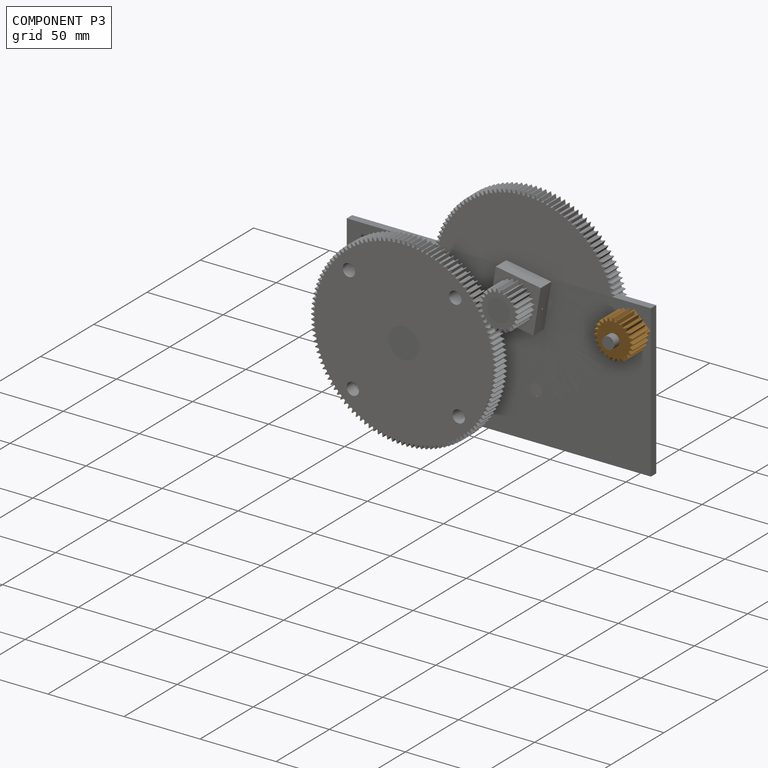
[diagram: component P3 — assembled]
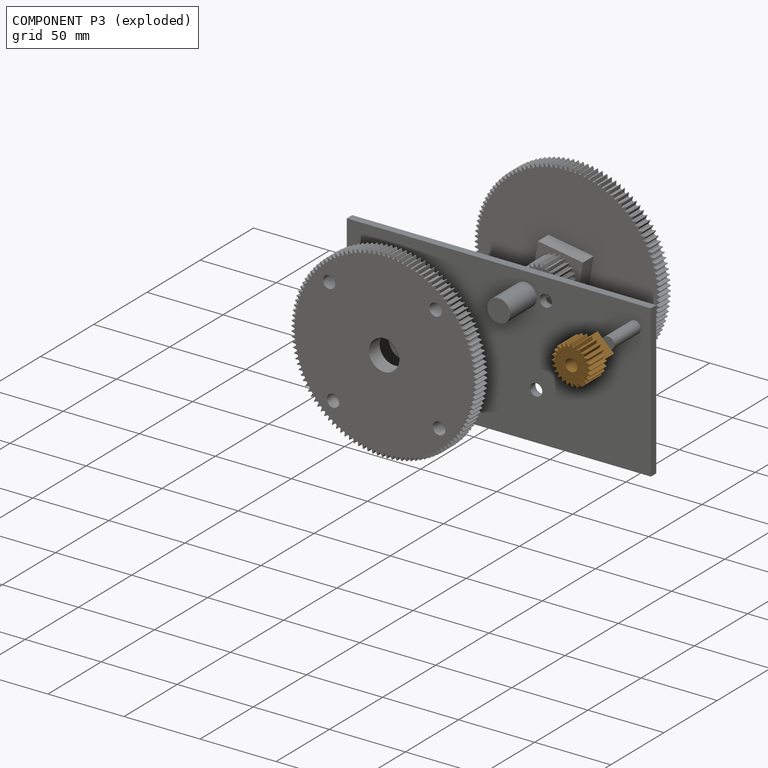
[diagram: component P3 — exploded]
COMPONENT P3 — geometry summary (no construction recipe available for this part):
  bounding box: 26.0 x 26.0 x 25.0 mm
  B-rep topology: 1 solid, 105 faces, 614 edges
  volume: 7389 mm^3 (44% of its bounding box)
  symmetry: mirror-symmetric across its x mid-plane
Held by: REVOLUTE mate "Revolute 3" to P1.
PROVENANCE & LICENSES
Assembly (occurrences, transforms, mates, per-part STEP geometry): AutoMate dataset, Zenodo record 7776208, CC0.
Construction recipes: CADFS (HuggingFace VladPyatov/CADFS, CC-BY-4.0, layered over the ABC dataset), FeatureScript reconstruction programs keyed by ABC model id.
Join: ABC meta listings map ABC model id -> Onshape documentId; within a shared document, parts are matched by geometric signature (bounding-box dims + volume at 0.1% relative tolerance, exact B-rep face/solid counts).
Verification: 3 of this assembly's 4 components carry a recipe attachment, and every attachment is mesh-verified: the CADFS STEP and the AutoMate member STEP were compared as meshes in their shared local frame (symmetric sampled-point-to-mesh distance); worst across the 3 attachments: below the mesh-comparison resolution (tessellation chordal tolerance ~0.338 mm) on a 226 mm part.
Renders: orthographic iso camera (az 35 / el 25); the floor grid conveys scale (grid pitch printed in each image; no ruler). In the exploded view each component is displaced by its stored offset vector: the offsets alone carry the explosion direction (mate normal/axis signs are not orientation cues and do not encode it), and separation distances are assigned per mate-chain, not proportionally to assembly-order depth.
